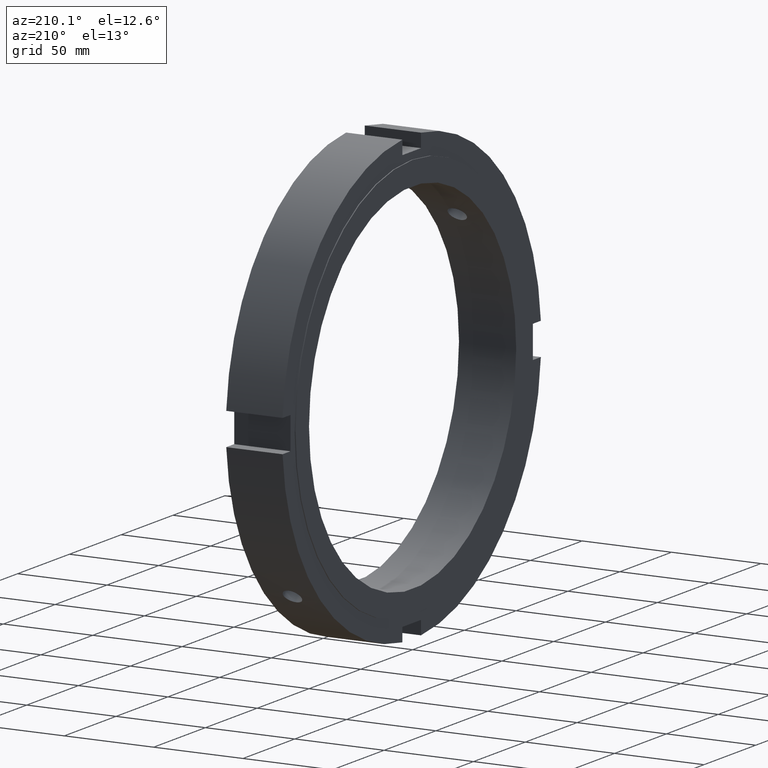
[diagram: clean part render]
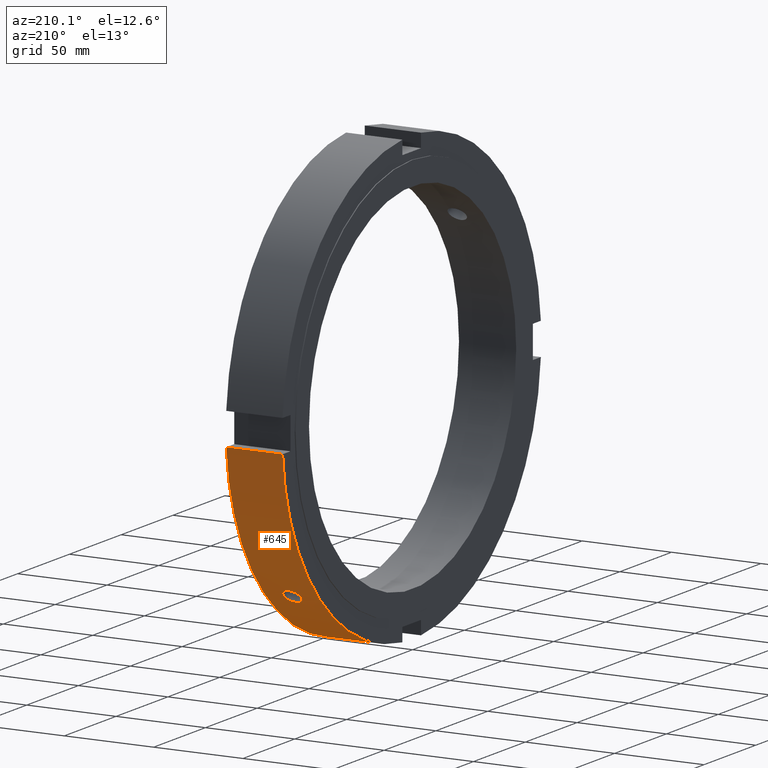
[diagram: same view with one face highlighted and labeled with its STEP entity id]
A machine part, auxiliary view. The second image highlights one B-rep face of the part: STEP entity #645.
In plain terms, the highlighted cylindrical surface (partial cylindrical patch) has radius 125 mm, axis along (1, 0, 0).
Its self-contained STEP definition (entity closure, byte-faithful):
#161=CARTESIAN_POINT('',(15.999999999999979,84.743089866578799,-91.889110997250057));
#162=VERTEX_POINT('',#161);
#163=CARTESIAN_POINT('',(15.999999999999979,84.743089866578828,-91.889110997250071));
#164=CARTESIAN_POINT('',(16.634540136500021,84.743089866578828,-91.889110997250071));
#165=CARTESIAN_POINT('',(17.311328182849323,84.836541258388280,-91.803201722354132));
#166=CARTESIAN_POINT('',(18.556262502749501,85.214823364544088,-91.452175797320606));
#167=CARTESIAN_POINT('',(19.124414628753094,85.499455468632490,-91.186865926172914));
#168=CARTESIAN_POINT('',(20.021606461463584,86.152007351640975,-90.570596951311842));
#169=CARTESIAN_POINT('',(20.410474190618810,86.563409257560039,-90.178510388367457));
#170=CARTESIAN_POINT('',(20.926172873479203,87.457331011932681,-89.311829062138273));
#171=CARTESIAN_POINT('',(21.052999999999990,87.939660055327025,-88.837035241309806));
#172=CARTESIAN_POINT('',(21.052999999999969,88.837035241309820,-87.939660055327010));
#173=CARTESIAN_POINT('',(20.926172873479185,89.311829062138287,-87.457331011932638));
#174=CARTESIAN_POINT('',(20.410474190618793,90.178510388367442,-86.563409257560011));
#175=CARTESIAN_POINT('',(20.021606461463577,90.570596951311842,-86.152007351640961));
#176=CARTESIAN_POINT('',(19.124414628753080,91.186865926172914,-85.499455468632476));
#177=CARTESIAN_POINT('',(18.556262502749490,91.452175797320606,-85.214823364544088));
#178=CARTESIAN_POINT('',(17.311328182849309,91.803201722354132,-84.836541258388280));
#179=CARTESIAN_POINT('',(16.634540136500021,91.889110997250043,-84.743089866578799));
#180=CARTESIAN_POINT('',(15.365459863499938,91.889110997250043,-84.743089866578799));
#181=CARTESIAN_POINT('',(14.688671817150649,91.803201722354132,-84.836541258388280));
#182=CARTESIAN_POINT('',(13.443737497250467,91.452175797320606,-85.214823364544088));
#183=CARTESIAN_POINT('',(12.875585371246876,91.186865926172914,-85.499455468632476));
#184=CARTESIAN_POINT('',(11.978393538536380,90.570596951311842,-86.152007351640961));
#185=CARTESIAN_POINT('',(11.589525809381154,90.178510388367442,-86.563409257560039));
#186=CARTESIAN_POINT('',(11.073827126520753,89.311829062138273,-87.457331011932652));
#187=CARTESIAN_POINT('',(10.946999999999985,88.837035241309820,-87.939660055327025));
#188=CARTESIAN_POINT('',(10.946999999999971,87.939660055327025,-88.837035241309806));
#189=CARTESIAN_POINT('',(11.073827126520753,87.457331011932681,-89.311829062138273));
#190=CARTESIAN_POINT('',(11.589525809381145,86.563409257560039,-90.178510388367457));
#191=CARTESIAN_POINT('',(11.978393538536372,86.152007351640975,-90.570596951311842));
#192=CARTESIAN_POINT('',(12.875585371246865,85.499455468632490,-91.186865926172914));
#193=CARTESIAN_POINT('',(13.443737497250456,85.214823364544102,-91.452175797320592));
#194=CARTESIAN_POINT('',(14.688671817150642,84.836541258388309,-91.803201722354132));
#195=CARTESIAN_POINT('',(15.365459863499932,84.743089866578828,-91.889110997250071));
#196=CARTESIAN_POINT('',(15.999999999999977,84.743089866578828,-91.889110997250071));
#197=B_SPLINE_CURVE_WITH_KNOTS('',3,(#163,#164,#165,#166,#167,#168,#169,#170,#171,#172,#173,#174,#175,#176,#177,#178,#179,#180,#181,#182,#183,#184,#185,#186,#187,#188,#189,#190,#191,#192,#193,#194,#195,#196),.UNSPECIFIED.,.T.,.U.,(4,2,2,2,2,2,2,2,2,2,2,2,2,2,2,2,4),(0.0,0.190362040950013,0.380724081900026,0.571086105683121,0.761448129466216,0.951810153249311,1.142172177032407,1.332534217982419,1.522896258932431,1.713258299882443,1.903620340832455,2.093982364615551,2.284344388398646,2.474706412181741,2.665068435964836,2.855430476914849,3.045792517864862),.UNSPECIFIED.);
#198=EDGE_CURVE('',#162,#162,#197,.T.);
#289=CARTESIAN_POINT('',(0.499999999999963,8.999999999999970,-124.675579004069590));
#290=VERTEX_POINT('',#289);
#299=CARTESIAN_POINT('',(31.999999999999975,8.999999999999970,-124.675579004069590));
#300=VERTEX_POINT('',#299);
#301=CARTESIAN_POINT('',(31.999999999999979,8.999999999999970,-124.675579004069590));
#302=DIRECTION('',(-1.0,0.0,0.0));
#303=VECTOR('',#302,31.500000000000014);
#304=LINE('',#301,#303);
#305=EDGE_CURVE('',#300,#290,#304,.T.);
#610=CARTESIAN_POINT('',(16.249999999999968,0.0,0.0));
#611=DIRECTION('',(1.0,0.0,0.0));
#612=DIRECTION('',(0.0,1.0,0.0));
#613=AXIS2_PLACEMENT_3D('',#610,#611,#612);
#614=CYLINDRICAL_SURFACE('',#613,125.0);
#615=ORIENTED_EDGE('',*,*,#305,.T.);
#616=CARTESIAN_POINT('',(0.499999999999963,124.675579004069590,-8.999999999999993));
#617=VERTEX_POINT('',#616);
#618=CARTESIAN_POINT('',(0.499999999999963,0.0,0.0));
#619=DIRECTION('',(1.0,0.0,0.0));
#620=DIRECTION('',(0.0,1.0,0.0));
#621=AXIS2_PLACEMENT_3D('',#618,#619,#620);
#622=CIRCLE('',#621,125.0);
#623=EDGE_CURVE('',#290,#617,#622,.T.);
#624=ORIENTED_EDGE('',*,*,#623,.T.);
#625=CARTESIAN_POINT('',(31.999999999999975,124.675579004069590,-8.999999999999993));
#626=VERTEX_POINT('',#625);
#627=CARTESIAN_POINT('',(0.499999999999964,124.675579004069590,-8.999999999999993));
#628=DIRECTION('',(1.0,0.0,0.0));
#629=VECTOR('',#628,31.500000000000014);
#630=LINE('',#627,#629);
#631=EDGE_CURVE('',#617,#626,#630,.T.);
#632=ORIENTED_EDGE('',*,*,#631,.T.);
#633=CARTESIAN_POINT('',(31.999999999999975,0.0,0.0));
#634=DIRECTION('',(1.0,0.0,0.0));
#635=DIRECTION('',(0.0,1.0,0.0));
#636=AXIS2_PLACEMENT_3D('',#633,#634,#635);
#637=CIRCLE('',#636,125.0);
#638=EDGE_CURVE('',#300,#626,#637,.T.);
#639=ORIENTED_EDGE('',*,*,#638,.F.);
#640=EDGE_LOOP('',(#615,#624,#632,#639));
#641=FACE_OUTER_BOUND('',#640,.T.);
#642=ORIENTED_EDGE('',*,*,#198,.T.);
#643=EDGE_LOOP('',(#642));
#644=FACE_BOUND('',#643,.T.);
#645=ADVANCED_FACE('',(#641,#644),#614,.T.);